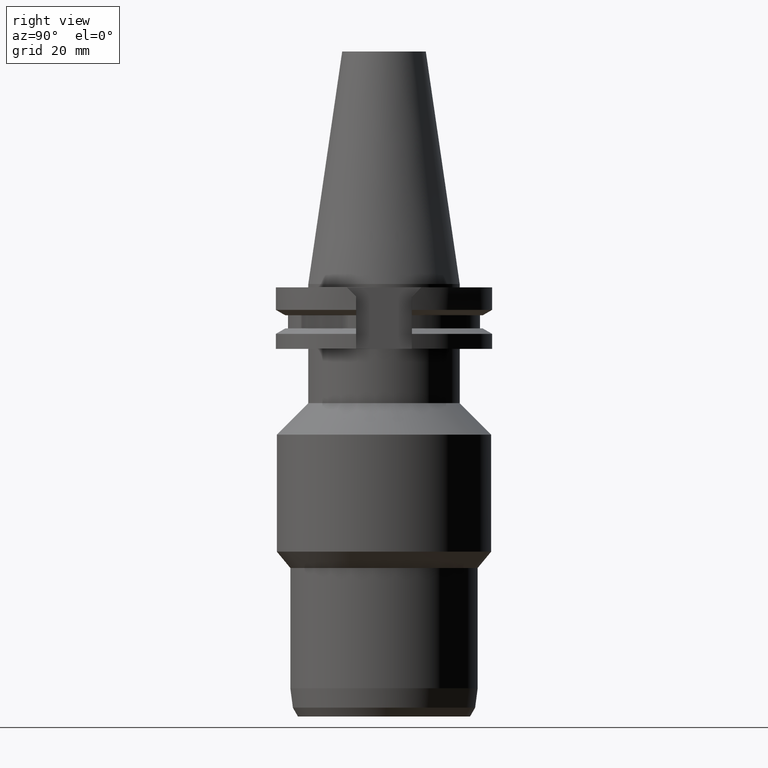
[diagram: clean part render]
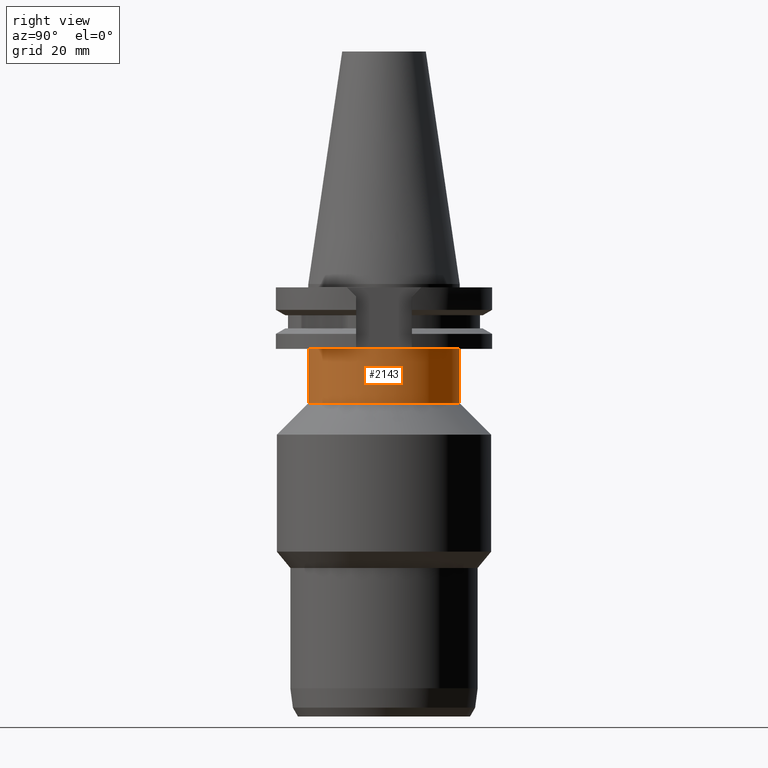
[diagram: same view with one face highlighted and labeled with its STEP entity id]
A machine part, right view. The second image highlights one B-rep face of the part: STEP entity #2143.
In plain terms, the highlighted cylindrical surface (partial cylindrical patch) has radius 22.225 mm, axis along (0, 0, -1).
Its self-contained STEP definition (entity closure, byte-faithful):
#259=CARTESIAN_POINT('',(0.E0,2.180024383332E-14,-1.905E1));
#260=DIRECTION('',(0.E0,0.E0,-1.E0));
#261=DIRECTION('',(0.E0,1.E0,0.E0));
#262=AXIS2_PLACEMENT_3D('',#259,#260,#261);
#848=DIRECTION('',(0.E0,0.E0,-1.E0));
#849=VECTOR('',#848,1.595E1);
#850=CARTESIAN_POINT('',(0.E0,-2.2225E1,-1.905E1));
#851=LINE('',#850,#849);
#855=DIRECTION('',(0.E0,0.E0,-1.E0));
#856=VECTOR('',#855,1.595E1);
#857=CARTESIAN_POINT('',(0.E0,2.2225E1,-1.905E1));
#858=LINE('',#857,#856);
#877=CARTESIAN_POINT('',(0.E0,0.E0,-3.5E1));
#878=DIRECTION('',(0.E0,0.E0,1.E0));
#879=DIRECTION('',(0.E0,-1.E0,0.E0));
#880=AXIS2_PLACEMENT_3D('',#877,#878,#879);
#1374=CARTESIAN_POINT('',(0.E0,2.2225E1,-3.5E1));
#1375=VERTEX_POINT('',#1374);
#1376=CARTESIAN_POINT('',(0.E0,-2.2225E1,-3.5E1));
#1377=VERTEX_POINT('',#1376);
#1378=CARTESIAN_POINT('',(0.E0,2.2225E1,-1.905E1));
#1379=VERTEX_POINT('',#1378);
#1380=CARTESIAN_POINT('',(0.E0,-2.2225E1,-1.905E1));
#1381=VERTEX_POINT('',#1380);
#2131=CARTESIAN_POINT('',(0.E0,2.180024383332E-14,7.80125E1));
#2132=DIRECTION('',(0.E0,0.E0,-1.E0));
#2133=DIRECTION('',(0.E0,-1.E0,0.E0));
#2134=AXIS2_PLACEMENT_3D('',#2131,#2132,#2133);
#2135=CYLINDRICAL_SURFACE('',#2134,2.2225E1);
#2136=ORIENTED_EDGE('',*,*,#2121,.T.);
#2138=ORIENTED_EDGE('',*,*,#2137,.F.);
#2139=ORIENTED_EDGE('',*,*,#2124,.F.);
#2140=ORIENTED_EDGE('',*,*,#1669,.F.);
#2141=EDGE_LOOP('',(#2136,#2138,#2139,#2140));
#2142=FACE_OUTER_BOUND('',#2141,.F.);
#263=CIRCLE('',#262,2.2225E1);
#881=CIRCLE('',#880,2.2225E1);
#1669=EDGE_CURVE('',#1379,#1381,#263,.T.);
#2121=EDGE_CURVE('',#1379,#1375,#858,.T.);
#2124=EDGE_CURVE('',#1381,#1377,#851,.T.);
#2137=EDGE_CURVE('',#1377,#1375,#881,.T.);
#2143=ADVANCED_FACE('',(#2142),#2135,.T.);